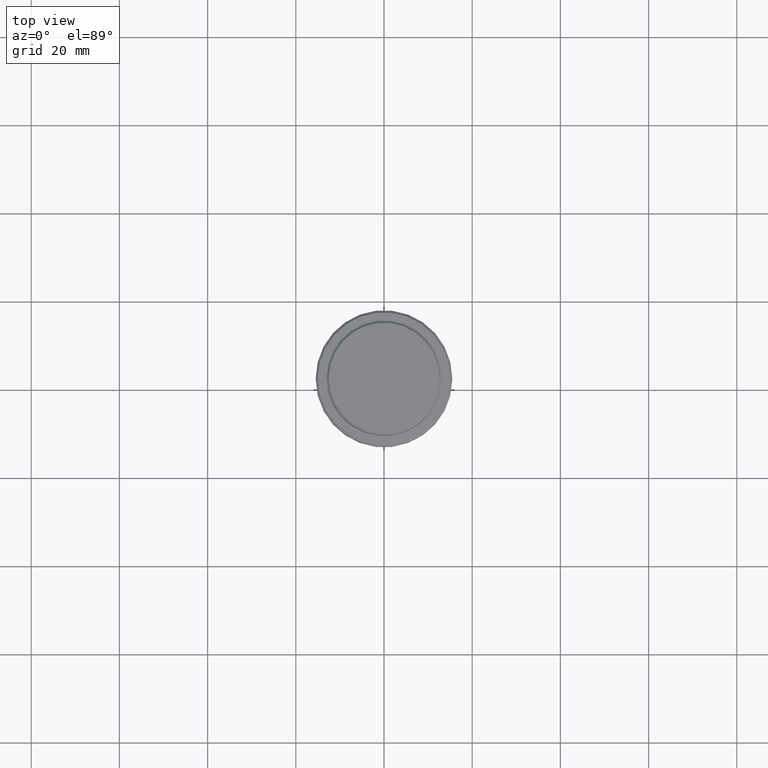
[diagram: clean part render]
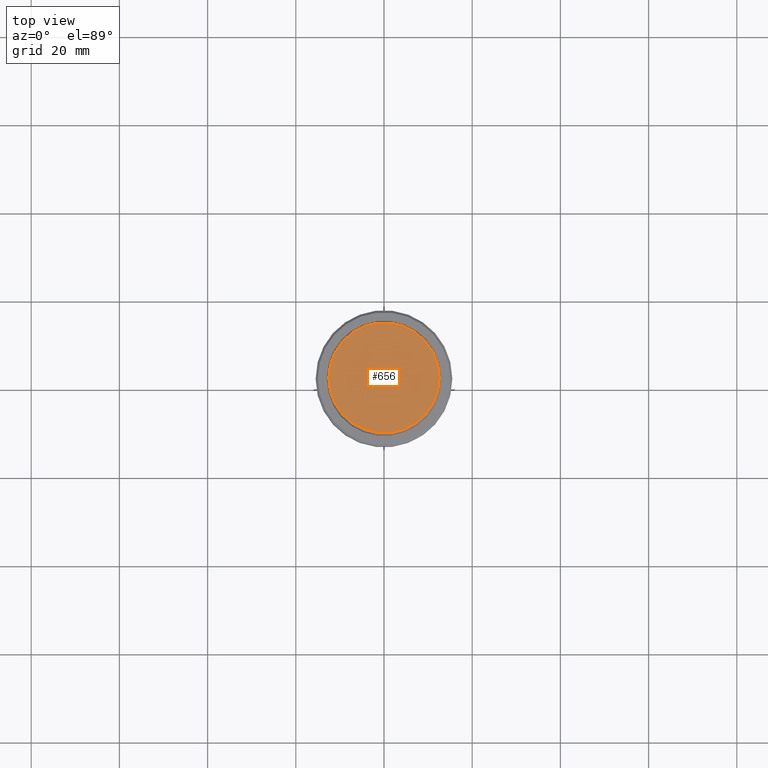
[diagram: same view with one face highlighted and labeled with its STEP entity id]
A machine part, top view. The second image highlights one B-rep face of the part: STEP entity #656.
In plain terms, the highlighted planar face has unit normal (0, -0, 1).
Its self-contained STEP definition (entity closure, byte-faithful):
#146 = CARTESIAN_POINT ( 'NONE',  ( -12.50000000000001243, 0.000000000000000000, 0.000000000000000000 ) ) ;
#183 = CARTESIAN_POINT ( 'NONE',  ( 12.50000000000001243, 1.561424668912876097E-15, 0.000000000000000000 ) ) ;
#214 = DIRECTION ( 'NONE',  ( 0.000000000000000000, -0.000000000000000000, 1.000000000000000000 ) ) ;
#232 = DIRECTION ( 'NONE',  ( -0.000000000000000000, -0.000000000000000000, 1.000000000000000000 ) ) ;
#321 = CARTESIAN_POINT ( 'NONE',  ( 0.000000000000000000, 0.000000000000000000, 0.000000000000000000 ) ) ;
#343 = CARTESIAN_POINT ( 'NONE',  ( 0.000000000000000000, 0.000000000000000000, 0.000000000000000000 ) ) ;
#393 = ORIENTED_EDGE ( 'NONE', *, *, #732, .T. ) ;
#507 = VERTEX_POINT ( 'NONE', #183 ) ;
#573 = AXIS2_PLACEMENT_3D ( 'NONE', #321, #214, #1086 ) ;
#656 = ADVANCED_FACE ( 'NONE', ( #1289 ), #1196, .T. ) ;
#681 = DIRECTION ( 'NONE',  ( 1.000000000000000000, 0.000000000000000000, 0.000000000000000000 ) ) ;
#682 = EDGE_CURVE ( 'NONE', #507, #735, #791, .T. ) ;
#686 = AXIS2_PLACEMENT_3D ( 'NONE', #1210, #896, #681 ) ;
#732 = EDGE_CURVE ( 'NONE', #735, #507, #839, .T. ) ;
#735 = VERTEX_POINT ( 'NONE', #146 ) ;
#746 = ORIENTED_EDGE ( 'NONE', *, *, #682, .T. ) ;
#791 = CIRCLE ( 'NONE', #1381, 12.50000000000001243 ) ;
#825 = EDGE_LOOP ( 'NONE', ( #393, #746 ) ) ;
#839 = CIRCLE ( 'NONE', #686, 12.50000000000001243 ) ;
#896 = DIRECTION ( 'NONE',  ( -0.000000000000000000, -0.000000000000000000, 1.000000000000000000 ) ) ;
#1012 = DIRECTION ( 'NONE',  ( 1.000000000000000000, 0.000000000000000000, 0.000000000000000000 ) ) ;
#1086 = DIRECTION ( 'NONE',  ( 1.000000000000000000, 0.000000000000000000, 0.000000000000000000 ) ) ;
#1196 = PLANE ( 'NONE',  #573 ) ;
#1210 = CARTESIAN_POINT ( 'NONE',  ( 0.000000000000000000, 0.000000000000000000, 0.000000000000000000 ) ) ;
#1289 = FACE_OUTER_BOUND ( 'NONE', #825, .T. ) ;
#1381 = AXIS2_PLACEMENT_3D ( 'NONE', #343, #232, #1012 ) ;